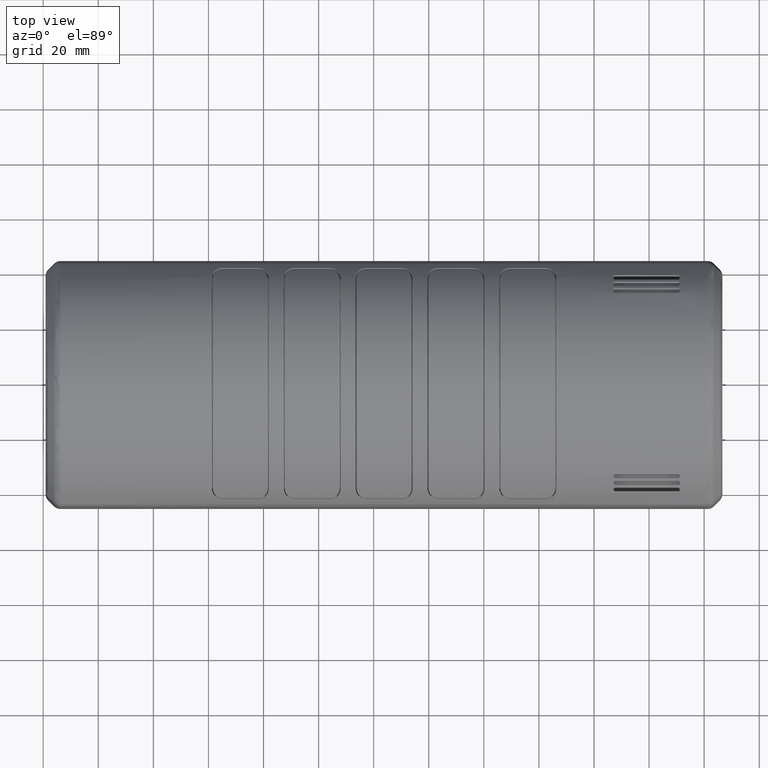
[diagram: clean part render]
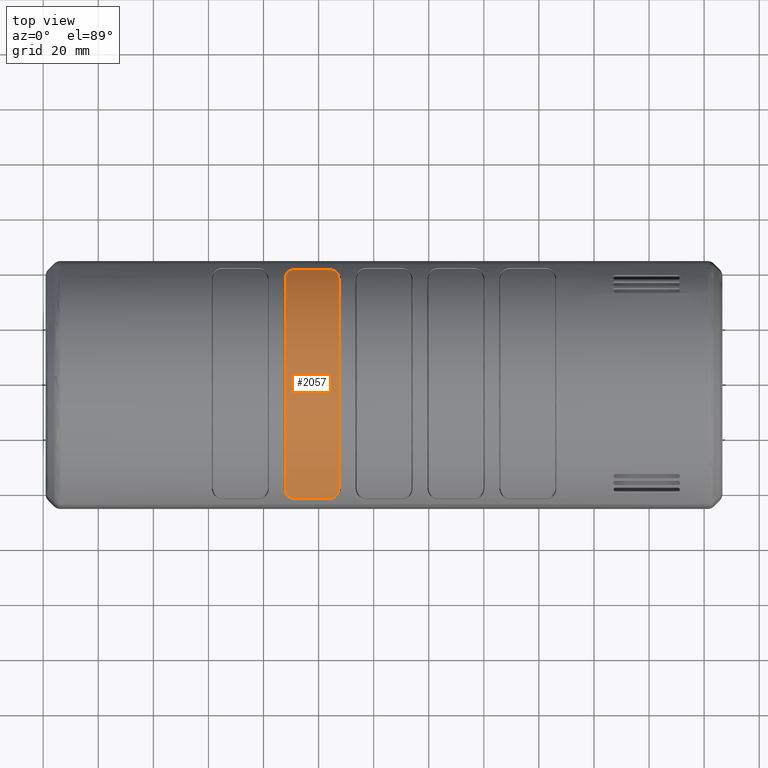
[diagram: same view with one face highlighted and labeled with its STEP entity id]
A machine part, top view. The second image highlights one B-rep face of the part: STEP entity #2057.
In plain terms, the highlighted cylindrical surface (partial cylindrical patch) has radius 49.5 mm, axis along (-1, 0, 0).
Its self-contained STEP definition (entity closure, byte-faithful):
#1130=CYLINDRICAL_SURFACE('',#13191,49.5);
#1574=CIRCLE('',#13187,49.5);
#1575=CIRCLE('',#13188,49.5);
#1576=CIRCLE('',#13189,49.5);
#1577=CIRCLE('',#13190,49.5);
#2057=ADVANCED_FACE('',(#2822),#1130,.T.);
#2822=FACE_OUTER_BOUND('',#3532,.T.);
#3532=EDGE_LOOP('',(#6994,#6995,#6996,#6997,#6998,#6999,#7000,#7001,#7002,
#7003));
#4134=LINE('',#37907,#4724);
#4135=LINE('',#37939,#4725);
#4724=VECTOR('',#14542,1.);
#4725=VECTOR('',#14547,1.);
#6994=ORIENTED_EDGE('',*,*,#10917,.F.);
#6995=ORIENTED_EDGE('',*,*,#10918,.F.);
#6996=ORIENTED_EDGE('',*,*,#10919,.F.);
#6997=ORIENTED_EDGE('',*,*,#10920,.F.);
#6998=ORIENTED_EDGE('',*,*,#10921,.F.);
#6999=ORIENTED_EDGE('',*,*,#10922,.F.);
#7000=ORIENTED_EDGE('',*,*,#10923,.F.);
#7001=ORIENTED_EDGE('',*,*,#10924,.F.);
#7002=ORIENTED_EDGE('',*,*,#10925,.F.);
#7003=ORIENTED_EDGE('',*,*,#10926,.F.);
#9403=VERTEX_POINT('',#37892);
#9404=VERTEX_POINT('',#37893);
#9405=VERTEX_POINT('',#37906);
#9406=VERTEX_POINT('',#37908);
#9407=VERTEX_POINT('',#37921);
#9408=VERTEX_POINT('',#37923);
#9409=VERTEX_POINT('',#37925);
#9410=VERTEX_POINT('',#37938);
#9411=VERTEX_POINT('',#37940);
#9412=VERTEX_POINT('',#37953);
#10917=EDGE_CURVE('',#9403,#9404,#1574,.T.);
#10918=EDGE_CURVE('',#9405,#9403,#12409,.T.);
#10919=EDGE_CURVE('',#9406,#9405,#4134,.T.);
#10920=EDGE_CURVE('',#9407,#9406,#12410,.T.);
#10921=EDGE_CURVE('',#9408,#9407,#1575,.T.);
#10922=EDGE_CURVE('',#9409,#9408,#1576,.T.);
#10923=EDGE_CURVE('',#9410,#9409,#12411,.T.);
#10924=EDGE_CURVE('',#9411,#9410,#4135,.T.);
#10925=EDGE_CURVE('',#9412,#9411,#12412,.T.);
#10926=EDGE_CURVE('',#9404,#9412,#1577,.T.);
#12409=B_SPLINE_CURVE_WITH_KNOTS('',3,(#37894,#37895,#37896,#37897,#37898,
#37899,#37900,#37901,#37902,#37903,#37904,#37905),.UNSPECIFIED.,.F.,.F.,
(4,2,2,2,2,4),(0.,0.182663926443545,0.365327852887091,0.675,0.875,1.),.UNSPECIFIED.);
#12410=B_SPLINE_CURVE_WITH_KNOTS('',3,(#37909,#37910,#37911,#37912,#37913,
#37914,#37915,#37916,#37917,#37918,#37919,#37920),.UNSPECIFIED.,.F.,.F.,
(4,2,2,2,2,4),(0.,0.291634449242724,0.60510304214482,0.801020912708631,0.923469581811012,
1.),.UNSPECIFIED.);
#12411=B_SPLINE_CURVE_WITH_KNOTS('',3,(#37926,#37927,#37928,#37929,#37930,
#37931,#37932,#37933,#37934,#37935,#37936,#37937),.UNSPECIFIED.,.F.,.F.,
(4,2,2,2,2,4),(0.,0.0765304182502677,0.198979087450696,0.394896958171382,
0.70836555132448,1.),.UNSPECIFIED.);
#12412=B_SPLINE_CURVE_WITH_KNOTS('',3,(#37941,#37942,#37943,#37944,#37945,
#37946,#37947,#37948,#37949,#37950,#37951,#37952),.UNSPECIFIED.,.F.,.F.,
(4,2,2,2,2,4),(0.,0.125,0.325,0.634680311232978,0.817340155616489,1.),.UNSPECIFIED.);
#13187=AXIS2_PLACEMENT_3D('',#37891,#14540,#14541);
#13188=AXIS2_PLACEMENT_3D('',#37922,#14543,#14544);
#13189=AXIS2_PLACEMENT_3D('',#37924,#14545,#14546);
#13190=AXIS2_PLACEMENT_3D('',#37954,#14548,#14549);
#13191=AXIS2_PLACEMENT_3D('',#37955,#14550,#14551);
#14540=DIRECTION('',(-1.,0.,0.));
#14541=DIRECTION('',(0.,0.,1.));
#14542=DIRECTION('',(-1.,0.,0.));
#14543=DIRECTION('',(1.,0.,0.));
#14544=DIRECTION('',(0.,0.,1.));
#14545=DIRECTION('',(1.,0.,0.));
#14546=DIRECTION('',(0.,0.,1.));
#14547=DIRECTION('',(1.,0.,0.));
#14548=DIRECTION('',(-1.,0.,0.));
#14549=DIRECTION('',(0.,0.,1.));
#14550=DIRECTION('',(-1.,0.,0.));
#14551=DIRECTION('',(0.,0.,1.));
#37891=CARTESIAN_POINT('',(27.8999999999998,6.93889390390723E-015,-3.25));
#37892=CARTESIAN_POINT('',(27.8999999999998,-38.2317073170732,28.1917963167128));
#37893=CARTESIAN_POINT('',(27.8999999999998,1.30104260698261E-014,46.25));
#37894=CARTESIAN_POINT('',(31.0999999999998,-41.4512195121953,23.8063560176125));
#37895=CARTESIAN_POINT('',(30.6851953652392,-41.4512195121953,23.8063560176125));
#37896=CARTESIAN_POINT('',(30.2763530467234,-41.3642360029864,23.9402159280085));
#37897=CARTESIAN_POINT('',(29.597985471616,-41.0980262623083,24.3409423482616));
#37898=CARTESIAN_POINT('',(29.3114463859656,-40.9191801040877,24.6065777275032));
#37899=CARTESIAN_POINT('',(28.6712878706441,-40.3923501763784,25.3690116829203));
#37900=CARTESIAN_POINT('',(28.3910819397963,-40.0040532920534,25.9114552027452));
#37901=CARTESIAN_POINT('',(28.0782667442262,-39.3306917429865,26.8089510942957));
#37902=CARTESIAN_POINT('',(27.9930234842506,-39.054330421242,27.1673893837346));
#37903=CARTESIAN_POINT('',(27.9152168853432,-38.5932352624092,27.7482831747566));
#37904=CARTESIAN_POINT('',(27.8999999999988,-38.4131097350854,27.9712197287152));
#37905=CARTESIAN_POINT('',(27.8999999999988,-38.2317073170732,28.1917963167128));
#37906=CARTESIAN_POINT('',(31.0999999999998,-41.4512195121951,23.8063560176128));
#37907=CARTESIAN_POINT('',(44.1999999999998,-41.4512195121951,23.8063560176128));
#37908=CARTESIAN_POINT('',(44.1999999999998,-41.4512195121951,23.8063560176128));
#37909=CARTESIAN_POINT('',(47.3999999999997,-38.2317073170732,28.1917963167128));
#37910=CARTESIAN_POINT('',(47.3999999999997,-38.6550781864219,27.676997766386));
#37911=CARTESIAN_POINT('',(47.3179902314089,-39.0703095692093,27.1503271343972));
#37912=CARTESIAN_POINT('',(46.985019525624,-39.8811307929972,26.0796687907434));
#37913=CARTESIAN_POINT('',(46.7217476505767,-40.2803900932577,25.5268655502835));
#37914=CARTESIAN_POINT('',(46.0987219136451,-40.8434176377889,24.717998036448));
#37915=CARTESIAN_POINT('',(45.8099921047118,-41.0409935046215,24.4260224103306));
#37916=CARTESIAN_POINT('',(45.2334039269021,-41.2883565672586,24.0547807381047));
#37917=CARTESIAN_POINT('',(44.9858069444615,-41.3646094534418,23.9387036301961));
#37918=CARTESIAN_POINT('',(44.5496994341482,-41.4365031808104,23.8289355615984));
#37919=CARTESIAN_POINT('',(44.3738497170251,-41.4512195121951,23.8063560176129));
#37920=CARTESIAN_POINT('',(44.1999999999998,-41.4512195121951,23.8063560176129));
#37921=CARTESIAN_POINT('',(47.3999999999998,-38.2317073170732,28.1917963167128));
#37922=CARTESIAN_POINT('',(47.3999999999998,6.93889390390723E-015,-3.25));
#37923=CARTESIAN_POINT('',(47.3999999999998,8.67361737988404E-016,46.25));
#37924=CARTESIAN_POINT('',(47.3999999999998,6.93889390390723E-015,-3.25));
#37925=CARTESIAN_POINT('',(47.3999999999998,38.2317073170732,28.1917963167128));
#37926=CARTESIAN_POINT('',(44.1999999999998,41.4512195121949,23.8063560176131));
#37927=CARTESIAN_POINT('',(44.3738497170251,41.4512195121949,23.8063560176131));
#37928=CARTESIAN_POINT('',(44.5496994343723,41.4365031808301,23.8289355615688));
#37929=CARTESIAN_POINT('',(44.9858069467989,41.3646094529652,23.9387036309228));
#37930=CARTESIAN_POINT('',(45.2334039262417,41.2883565679577,24.0547807370779));
#37931=CARTESIAN_POINT('',(45.8099921178426,41.0409934983223,24.4260224197485));
#37932=CARTESIAN_POINT('',(46.0987219096923,40.8434176437745,24.7179980281286));
#37933=CARTESIAN_POINT('',(46.7217476912013,40.2803900526824,25.5268656081281));
#37934=CARTESIAN_POINT('',(46.9850195255617,39.8811308036395,26.0796687777023));
#37935=CARTESIAN_POINT('',(47.3179902518184,39.0703095097468,27.1503272119742));
#37936=CARTESIAN_POINT('',(47.3999999999989,38.6550781852594,27.6769977677995));
#37937=CARTESIAN_POINT('',(47.3999999999989,38.2317073170732,28.1917963167128));
#37938=CARTESIAN_POINT('',(44.1999999999998,41.4512195121951,23.8063560176129));
#37939=CARTESIAN_POINT('',(31.0999999999998,41.4512195121951,23.8063560176128));
#37940=CARTESIAN_POINT('',(31.0999999999998,41.4512195121951,23.8063560176128));
#37941=CARTESIAN_POINT('',(27.899999999999,38.2317073170732,28.1917963167128));
#37942=CARTESIAN_POINT('',(27.899999999999,38.4131097391808,27.9712197237355));
#37943=CARTESIAN_POINT('',(27.9152168858974,38.5932352622807,27.7482831747683));
#37944=CARTESIAN_POINT('',(27.9930234789433,39.0543303952481,27.1673894167225));
#37945=CARTESIAN_POINT('',(28.0782666662604,39.3306915554949,26.8089513421394));
#37946=CARTESIAN_POINT('',(28.3910869727444,40.004064156352,25.9114407253526));
#37947=CARTESIAN_POINT('',(28.6713011682671,40.3923697874601,25.3689842537041));
#37948=CARTESIAN_POINT('',(29.3114774530139,40.9192005583081,24.6065475642633));
#37949=CARTESIAN_POINT('',(29.5980133331867,41.0980401779043,24.3409215418891));
#37950=CARTESIAN_POINT('',(30.2763704096336,41.3642398344981,23.9402100195906));
#37951=CARTESIAN_POINT('',(30.6852046256713,41.4512195121953,23.8063560176126));
#37952=CARTESIAN_POINT('',(31.0999999999998,41.4512195121953,23.8063560176126));
#37953=CARTESIAN_POINT('',(27.8999999999998,38.2317073170732,28.1917963167128));
#37954=CARTESIAN_POINT('',(27.8999999999998,6.93889390390723E-015,-3.25));
#37955=CARTESIAN_POINT('',(48.8999999999998,6.93889390390723E-015,-3.25));